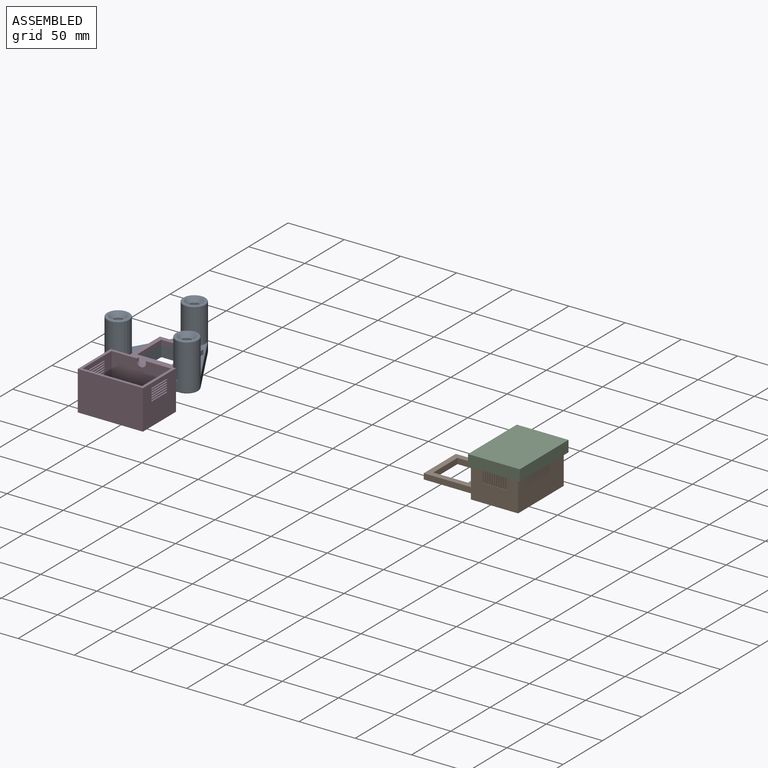
[diagram: assembled view]
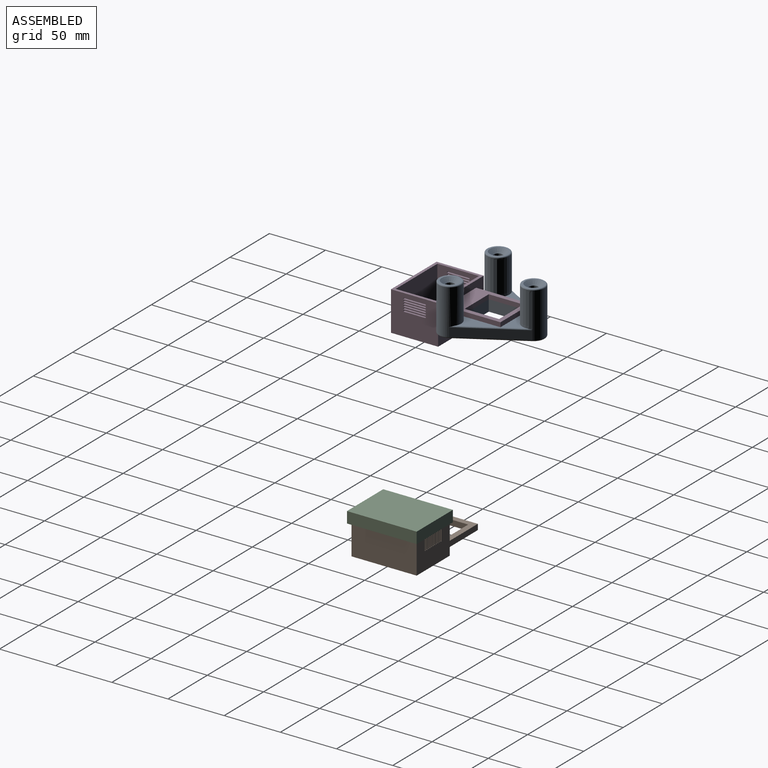
[diagram: assembled view, second angle]
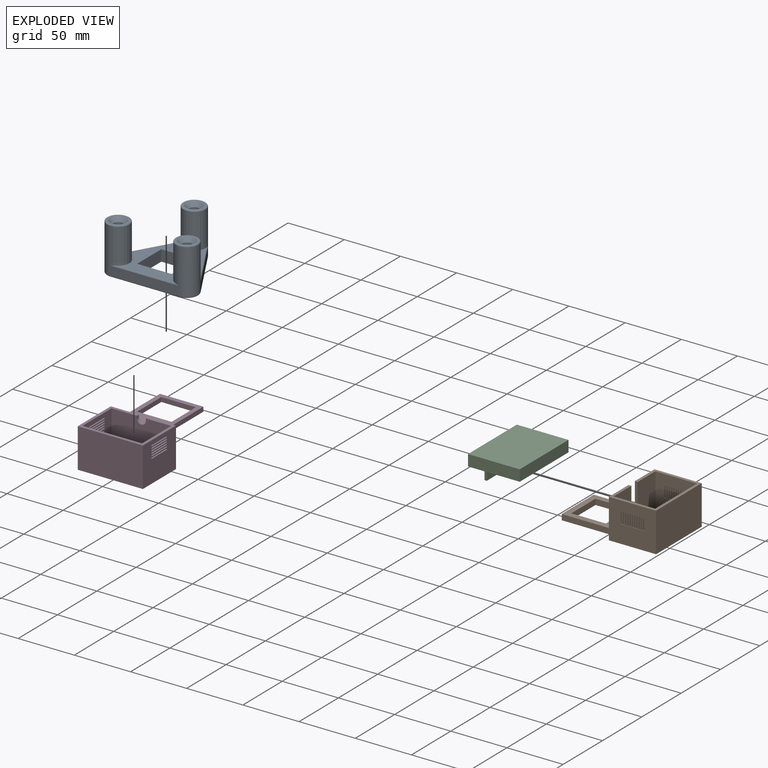
[diagram: exploded view]
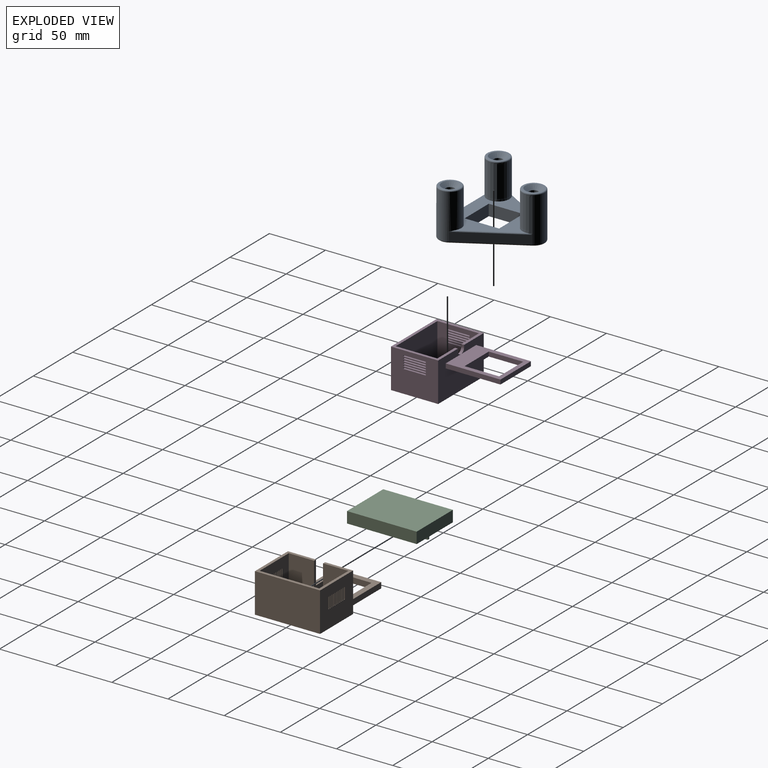
[diagram: exploded view, second angle]
ASSEMBLY  parts=4 mates=2
PART A: 40 faces, bbox 82.8x74.6x42 mm
  f0: plane 72.44x62.74mm, normal (0,0,1), area 1721mm2, adj f2,f8,f11,f33,f34,f35,f36,f37
  f1: plane 79.2x71mm, normal (0,0,-1), area 2586.1mm2, adj f27,f28,f29,f30,f31,f32,f36,f37
  f2: cylinder r=10mm len=40mm, axis (0,0,-1), area 2140.8mm2, adj f0,f3,f7,f17,f32,f34,f35
  f3: plane 53x30.6mm, normal (0.87,0.5,0), area 489.6mm2, adj f2,f4,f31,f34
  f4: cylinder r=10mm len=40mm, axis (0,0,-1), area 837.8mm2, adj f3,f5,f8,f16,f29
  f5: plane 53x30.6mm, normal (-0.87,0.5,0), area 489.6mm2, adj f4,f6,f27,f33
  f6: cylinder r=10mm len=40mm, axis (0,0,-1), area 837.8mm2, adj f5,f7,f11,f14,f28
  f7: plane 61.2x8mm, normal (0,-1,0), area 489.6mm2, adj f2,f6,f30,f35
  f8: extruded ~32x20mm, area 1303.4mm2, adj f0,f4,f15,f33,f34
  f9: plane 18.01x18mm, normal (0,0,1), area 77.7mm2, adj f15,f16,f25
  f10: plane 18x18mm, normal (0,0,1), area 77.8mm2, adj f17,f24
  f11: extruded ~32x20mm, area 1303.4mm2, adj f0,f6,f13,f33,f35
  f12: plane 18.01x18.01mm, normal (0,0,1), area 77.7mm2, adj f13,f14,f26
  f13: bspline ~20.01x18.8mm, area 63.4mm2, adj f11,f12,f14
  f14: torus R=9mm, axis (0,0,1), area 31.7mm2, adj f6,f12,f13
  f15: bspline ~20.02x15.24mm, area 63.4mm2, adj f8,f9,f16
  f16: torus R=9mm, axis (0,0,1), area 31.7mm2, adj f4,f9,f15
  f17: torus R=9mm, axis (0,0,1), area 95.1mm2, adj f2,f10
  f18: cone r=0mm half-angle=59deg, axis (0,0,1), area 58.6mm2, adj f19
  f19: cylinder r=4mm len=8mm, axis (0,0,1), area 130.7mm2, adj f18,f26
  f20: cone r=0mm half-angle=59deg, axis (0,0,1), area 58.6mm2, adj f21
  f21: cylinder r=4mm len=8mm, axis (0,0,1), area 130.7mm2, adj f20,f24
  f22: cone r=0mm half-angle=59deg, axis (0,0,1), area 58.6mm2, adj f23
  f23: cylinder r=4mm len=8mm, axis (0,0,1), area 130.7mm2, adj f22,f25
  f24: cone r=4mm half-angle=45deg, axis (0,0,1), area 178.8mm2, adj f10,f21
  f25: cone r=4mm half-angle=45deg, axis (0,0,1), area 178.8mm2, adj f9,f23
  f26: cone r=4mm half-angle=45deg, axis (0,0,1), area 178.8mm2, adj f12,f19
  f27: cylinder r=1mm len=53.5mm, axis (-0.5,-0.87,0), area 96.1mm2, adj f1,f5,f28,f29
  f28: torus R=9mm, axis (0,0,1), area 31.7mm2, adj f1,f6,f27,f30
  f29: torus R=9mm, axis (0,0,1), area 31.7mm2, adj f1,f4,f27,f31
  f30: cylinder r=1mm len=61.2mm, axis (1,0,0), area 96.1mm2, adj f1,f7,f28,f32
  f31: cylinder r=1mm len=53.5mm, axis (-0.5,0.87,0), area 96.1mm2, adj f1,f3,f29,f32
  f32: torus R=9mm, axis (0,0,1), area 31.7mm2, adj f1,f2,f30,f31
  f33: cylinder r=1mm len=53.5mm, axis (0.5,0.87,0), area 89.3mm2, adj f0,f5,f8,f11
  f34: cylinder r=1mm len=53.5mm, axis (0.5,-0.87,0), area 89.3mm2, adj f0,f2,f3,f8
  f35: cylinder r=1mm len=61.2mm, axis (-1,0,0), area 89.3mm2, adj f0,f2,f7,f11
  f36: plane 30.7x10mm, normal (0,-1,0), area 307mm2, adj f0,f1,f37,f39
  f37: plane 30.7x10mm, normal (1,0,0), area 307mm2, adj f0,f1,f36,f38
  f38: plane 30.7x10mm, normal (0,1,0), area 307mm2, adj f0,f1,f37,f39
  f39: plane 30.7x10mm, normal (-1,0,0), area 307mm2, adj f0,f1,f36,f38
PART B: 110 faces, bbox 90x58x35 mm
  f0: plane 58x42mm, normal (0,0,1), area 455mm2, adj f1,f2,f3,f4,f5,f6,f9,f10
  f1: plane 35x25mm, normal (-1,0,0), area 793mm2, adj f0,f4,f7,f8,f14,f109
  f2: plane 53x32.5mm, normal (1,0,0), area 1482.5mm2, adj f0,f5,f6,f8,f12,f108,f109
  f3: plane 42x35mm, normal (0,1,0), area 1360mm2, adj f0,f7,f9,f10,f64,f65,f66,f67
  f4: plane 42x35mm, normal (0,-1,0), area 1360mm2, adj f0,f1,f7,f10,f20,f21,f22,f23
  f5: plane 37x32.5mm, normal (0,-1,0), area 1092.5mm2, adj f0,f2,f11,f12,f64,f65,f66,f67
  f6: plane 37x32.5mm, normal (0,1,0), area 1092.5mm2, adj f0,f2,f11,f12,f20,f21,f22,f23
  f7: plane 90x58mm, normal (0,0,-1), area 3451.9mm2, adj f1,f3,f4,f9,f10,f13,f14,f15
  f8: plane 50.5x40.8mm, normal (0,0,1), area 1035.9mm2, adj f1,f2,f9,f13,f14,f15,f16,f17
  f9: plane 35x25mm, normal (-1,0,0), area 793mm2, adj f0,f3,f7,f8,f13,f108
  f10: plane 58x35mm, normal (1,0,0), area 2030mm2, adj f0,f3,f4,f7
  f11: plane 53x32.5mm, normal (-1,0,0), area 1722.5mm2, adj f0,f5,f6,f12
  f12: plane 53x37mm, normal (0,0,1), area 1961mm2, adj f2,f5,f6,f11
  f13: plane 48x5mm, normal (0,1,0), area 240mm2, adj f7,f8,f9,f15
  f14: plane 48x5mm, normal (0,-1,0), area 240mm2, adj f1,f7,f8,f15
  f15: plane 40.8x5mm, normal (-1,0,0), area 204mm2, adj f7,f8,f13,f14
  f16: plane 30.7x5mm, normal (0,-1,0), area 153.5mm2, adj f7,f8,f17,f19
  f17: plane 30.7x5mm, normal (1,0,0), area 153.5mm2, adj f7,f8,f16,f18
  f18: plane 30.7x5mm, normal (0,1,0), area 153.5mm2, adj f7,f8,f17,f19
  f19: plane 30.7x5mm, normal (-1,0,0), area 153.5mm2, adj f7,f8,f16,f18
  f20: plane 2.5x1mm, normal (0,0,-1), area 2.5mm2, adj f4,f6,f21,f23
  f21: plane 10x2.5mm, normal (-1,0,0), area 25mm2, adj f4,f6,f20,f22
  f22: plane 2.5x1mm, normal (0,0,1), area 2.5mm2, adj f4,f6,f21,f23
  f23: plane 10x2.5mm, normal (1,0,0), area 25mm2, adj f4,f6,f20,f22
  f24: plane 2.5x1mm, normal (0,0,-1), area 2.5mm2, adj f4,f6,f25,f27
  f25: plane 10x2.5mm, normal (-1,0,0), area 25mm2, adj f4,f6,f24,f26
  f26: plane 2.5x1mm, normal (0,0,1), area 2.5mm2, adj f4,f6,f25,f27
  f27: plane 10x2.5mm, normal (1,0,0), area 25mm2, adj f4,f6,f24,f26
  f28: plane 2.5x1mm, normal (0,0,-1), area 2.5mm2, adj f4,f6,f29,f31
  f29: plane 10x2.5mm, normal (-1,0,0), area 25mm2, adj f4,f6,f28,f30
  f30: plane 2.5x1mm, normal (0,0,1), area 2.5mm2, adj f4,f6,f29,f31
  f31: plane 10x2.5mm, normal (1,0,0), area 25mm2, adj f4,f6,f28,f30
  f32: plane 2.5x1mm, normal (0,0,-1), area 2.5mm2, adj f4,f6,f33,f35
  f33: plane 10x2.5mm, normal (-1,0,0), area 25mm2, adj f4,f6,f32,f34
  f34: plane 2.5x1mm, normal (0,0,1), area 2.5mm2, adj f4,f6,f33,f35
  f35: plane 10x2.5mm, normal (1,0,0), area 25mm2, adj f4,f6,f32,f34
  f36: plane 2.5x1mm, normal (0,0,-1), area 2.5mm2, adj f4,f6,f37,f39
  f37: plane 10x2.5mm, normal (-1,0,0), area 25mm2, adj f4,f6,f36,f38
  f38: plane 2.5x1mm, normal (0,0,1), area 2.5mm2, adj f4,f6,f37,f39
  f39: plane 10x2.5mm, normal (1,0,0), area 25mm2, adj f4,f6,f36,f38
  f40: plane 2.5x1mm, normal (0,0,-1), area 2.5mm2, adj f4,f6,f41,f43
  f41: plane 10x2.5mm, normal (-1,0,0), area 25mm2, adj f4,f6,f40,f42
  f42: plane 2.5x1mm, normal (0,0,1), area 2.5mm2, adj f4,f6,f41,f43
  f43: plane 10x2.5mm, normal (1,0,0), area 25mm2, adj f4,f6,f40,f42
  f44: plane 2.5x1mm, normal (0,0,-1), area 2.5mm2, adj f4,f6,f45,f47
  f45: plane 10x2.5mm, normal (-1,0,0), area 25mm2, adj f4,f6,f44,f46
  f46: plane 2.5x1mm, normal (0,0,1), area 2.5mm2, adj f4,f6,f45,f47
  f47: plane 10x2.5mm, normal (1,0,0), area 25mm2, adj f4,f6,f44,f46
  f48: plane 2.5x1mm, normal (0,0,-1), area 2.5mm2, adj f4,f6,f49,f51
  f49: plane 10x2.5mm, normal (-1,0,0), area 25mm2, adj f4,f6,f48,f50
  f50: plane 2.5x1mm, normal (0,0,1), area 2.5mm2, adj f4,f6,f49,f51
  f51: plane 10x2.5mm, normal (1,0,0), area 25mm2, adj f4,f6,f48,f50
  f52: plane 2.5x1mm, normal (0,0,-1), area 2.5mm2, adj f4,f6,f53,f55
  f53: plane 10x2.5mm, normal (-1,0,0), area 25mm2, adj f4,f6,f52,f54
  f54: plane 2.5x1mm, normal (0,0,1), area 2.5mm2, adj f4,f6,f53,f55
  f55: plane 10x2.5mm, normal (1,0,0), area 25mm2, adj f4,f6,f52,f54
  f56: plane 2.5x1mm, normal (0,0,-1), area 2.5mm2, adj f4,f6,f57,f59
  f57: plane 10x2.5mm, normal (-1,0,0), area 25mm2, adj f4,f6,f56,f58
  f58: plane 2.5x1mm, normal (0,0,1), area 2.5mm2, adj f4,f6,f57,f59
  f59: plane 10x2.5mm, normal (1,0,0), area 25mm2, adj f4,f6,f56,f58
  f60: plane 10x2.5mm, normal (-1,0,0), area 25mm2, adj f4,f6,f61,f63
  f61: plane 2.5x1mm, normal (0,0,1), area 2.5mm2, adj f4,f6,f60,f62
  f62: plane 10x2.5mm, normal (1,0,0), area 25mm2, adj f4,f6,f61,f63
  f63: plane 2.5x1mm, normal (0,0,-1), area 2.5mm2, adj f4,f6,f60,f62
  f64: plane 10x2.5mm, normal (1,0,0), area 25mm2, adj f3,f5,f65,f67
  f65: plane 2.5x1mm, normal (0,0,1), area 2.5mm2, adj f3,f5,f64,f66
  f66: plane 10x2.5mm, normal (-1,0,0), area 25mm2, adj f3,f5,f65,f67
  f67: plane 2.5x1mm, normal (0,0,-1), area 2.5mm2, adj f3,f5,f64,f66
  f68: plane 10x2.5mm, normal (1,0,0), area 25mm2, adj f3,f5,f69,f71
  f69: plane 2.5x1mm, normal (0,0,1), area 2.5mm2, adj f3,f5,f68,f70
  f70: plane 10x2.5mm, normal (-1,0,0), area 25mm2, adj f3,f5,f69,f71
  f71: plane 2.5x1mm, normal (0,0,-1), area 2.5mm2, adj f3,f5,f68,f70
  f72: plane 10x2.5mm, normal (1,0,0), area 25mm2, adj f3,f5,f73,f75
  f73: plane 2.5x1mm, normal (0,0,1), area 2.5mm2, adj f3,f5,f72,f74
  f74: plane 10x2.5mm, normal (-1,0,0), area 25mm2, adj f3,f5,f73,f75
  f75: plane 2.5x1mm, normal (0,0,-1), area 2.5mm2, adj f3,f5,f72,f74
  f76: plane 10x2.5mm, normal (1,0,0), area 25mm2, adj f3,f5,f77,f79
  f77: plane 2.5x1mm, normal (0,0,1), area 2.5mm2, adj f3,f5,f76,f78
  f78: plane 10x2.5mm, normal (-1,0,0), area 25mm2, adj f3,f5,f77,f79
  f79: plane 2.5x1mm, normal (0,0,-1), area 2.5mm2, adj f3,f5,f76,f78
  f80: plane 10x2.5mm, normal (1,0,0), area 25mm2, adj f3,f5,f81,f83
  f81: plane 2.5x1mm, normal (0,0,1), area 2.5mm2, adj f3,f5,f80,f82
  f82: plane 10x2.5mm, normal (-1,0,0), area 25mm2, adj f3,f5,f81,f83
  f83: plane 2.5x1mm, normal (0,0,-1), area 2.5mm2, adj f3,f5,f80,f82
  f84: plane 10x2.5mm, normal (1,0,0), area 25mm2, adj f3,f5,f85,f87
  f85: plane 2.5x1mm, normal (0,0,1), area 2.5mm2, adj f3,f5,f84,f86
  f86: plane 10x2.5mm, normal (-1,0,0), area 25mm2, adj f3,f5,f85,f87
  f87: plane 2.5x1mm, normal (0,0,-1), area 2.5mm2, adj f3,f5,f84,f86
  f88: plane 10x2.5mm, normal (1,0,0), area 25mm2, adj f3,f5,f89,f91
  f89: plane 2.5x1mm, normal (0,0,1), area 2.5mm2, adj f3,f5,f88,f90
  f90: plane 10x2.5mm, normal (-1,0,0), area 25mm2, adj f3,f5,f89,f91
  f91: plane 2.5x1mm, normal (0,0,-1), area 2.5mm2, adj f3,f5,f88,f90
  f92: plane 10x2.5mm, normal (1,0,0), area 25mm2, adj f3,f5,f93,f95
  f93: plane 2.5x1mm, normal (0,0,1), area 2.5mm2, adj f3,f5,f92,f94
  f94: plane 10x2.5mm, normal (-1,0,0), area 25mm2, adj f3,f5,f93,f95
  f95: plane 2.5x1mm, normal (0,0,-1), area 2.5mm2, adj f3,f5,f92,f94
  f96: plane 10x2.5mm, normal (1,0,0), area 25mm2, adj f3,f5,f97,f99
  f97: plane 2.5x1mm, normal (0,0,1), area 2.5mm2, adj f3,f5,f96,f98
  f98: plane 10x2.5mm, normal (-1,0,0), area 25mm2, adj f3,f5,f97,f99
  f99: plane 2.5x1mm, normal (0,0,-1), area 2.5mm2, adj f3,f5,f96,f98
  f100: plane 10x2.5mm, normal (1,0,0), area 25mm2, adj f3,f5,f101,f103
  f101: plane 2.5x1mm, normal (0,0,1), area 2.5mm2, adj f3,f5,f100,f102
  f102: plane 10x2.5mm, normal (-1,0,0), area 25mm2, adj f3,f5,f101,f103
  f103: plane 2.5x1mm, normal (0,0,-1), area 2.5mm2, adj f3,f5,f100,f102
  f104: plane 2.5x1mm, normal (0,0,-1), area 2.5mm2, adj f3,f5,f105,f107
  f105: plane 10x2.5mm, normal (1,0,0), area 25mm2, adj f3,f5,f104,f106
  f106: plane 2.5x1mm, normal (0,0,1), area 2.5mm2, adj f3,f5,f105,f107
  f107: plane 10x2.5mm, normal (-1,0,0), area 25mm2, adj f3,f5,f104,f106
  f108: plane 30x2.5mm, normal (0,-1,0), area 75mm2, adj f0,f2,f8,f9
  f109: plane 30x2.5mm, normal (0,1,0), area 75mm2, adj f0,f1,f2,f8
PART C: 16 faces, bbox 46x62x29 mm
  f0: plane 46x10mm, normal (0,1,0), area 460mm2, adj f1,f7,f8,f15
  f1: plane 62x29mm, normal (-1,0,0), area 1000mm2, adj f0,f2,f8,f10,f11,f13,f15
  f2: plane 46x10mm, normal (0,-1,0), area 460mm2, adj f1,f7,f8,f15
  f3: plane 42.4x8mm, normal (0,-1,0), area 339.2mm2, adj f4,f6,f8,f14
  f4: plane 58.4x8mm, normal (-1,0,0), area 467.2mm2, adj f3,f5,f8,f14
  f5: plane 42.4x8mm, normal (0,1,0), area 339.2mm2, adj f4,f6,f8,f14
  f6: plane 58.4x8mm, normal (1,0,0), area 467.2mm2, adj f3,f5,f8,f9,f14
  f7: plane 62x10mm, normal (1,0,0), area 620mm2, adj f0,f2,f8,f15
  f8: plane 62x46mm, normal (0,0,-1), area 339.8mm2, adj f0,f1,f2,f3,f4,f5,f6,f7
  f9: plane 20x0.2mm, normal (0,0,1), area 4mm2, adj f6,f10,f11,f12
  f10: plane 19x2mm, normal (0,-1,0), area 38mm2, adj f1,f8,f9,f12,f13
  f11: plane 19x2mm, normal (0,1,0), area 38mm2, adj f1,f8,f9,f12,f13
  f12: plane 20x19mm, normal (1,0,0), area 380mm2, adj f9,f10,f11,f13
  f13: plane 20x2mm, normal (0,0,-1), area 40mm2, adj f1,f10,f11,f12
  f14: plane 58.4x42.4mm, normal (0,0,-1), area 2476.2mm2, adj f3,f4,f5,f6
  f15: plane 62x46mm, normal (0,0,1), area 2852mm2, adj f0,f1,f2,f7
PART D: 71 faces, bbox 90.7x58x35 mm
  f0: plane 58x42mm, normal (0,0,1), area 455mm2, adj f1,f2,f3,f4,f5,f6,f7,f18
  f1: plane 58x35mm, normal (-1,0,0), area 1834.1mm2, adj f0,f3,f4,f8,f10,f15,f16,f17
  f2: plane 53x32.5mm, normal (1,0,0), area 1681.4mm2, adj f0,f5,f6,f19,f68,f69,f70
  f3: plane 42x35mm, normal (0,1,0), area 1350mm2, adj f0,f1,f7,f8,f44,f45,f46,f47
  f4: plane 42x35mm, normal (0,-1,0), area 1350mm2, adj f0,f1,f7,f8,f20,f21,f22,f23
  f5: plane 37x32.5mm, normal (0,-1,0), area 1082.5mm2, adj f0,f2,f18,f19,f44,f45,f46,f47
  f6: plane 37x32.5mm, normal (0,1,0), area 1082.5mm2, adj f0,f2,f18,f19,f20,f21,f22,f23
  f7: plane 58x35mm, normal (1,0,0), area 2030mm2, adj f0,f3,f4,f8
  f8: plane 58x42mm, normal (0,0,-1), area 2436mm2, adj f1,f3,f4,f7
  f9: plane 38.7x4mm, normal (-1,0,0), area 154.8mm2, adj f10,f15,f16,f17
  f10: plane 48.7x4mm, normal (0,-1,0), area 194.8mm2, adj f1,f9,f16,f17
  f11: plane 30.7x4mm, normal (1,0,0), area 122.8mm2, adj f12,f14,f16,f17
  f12: plane 30.7x4mm, normal (0,-1,0), area 122.8mm2, adj f11,f13,f16,f17
  f13: plane 30.7x4mm, normal (-1,0,0), area 122.8mm2, adj f12,f14,f16,f17
  f14: plane 30.7x4mm, normal (0,1,0), area 122.8mm2, adj f11,f13,f16,f17
  f15: plane 48.7x4mm, normal (0,1,0), area 194.8mm2, adj f1,f9,f16,f17
  f16: plane 48.7x38.7mm, normal (0,0,1), area 942.2mm2, adj f1,f9,f10,f11,f12,f13,f14,f15
  f17: plane 48.7x38.7mm, normal (0,0,-1), area 942.2mm2, adj f1,f9,f10,f11,f12,f13,f14,f15
  f18: plane 53x32.5mm, normal (-1,0,0), area 1722.5mm2, adj f0,f5,f6,f19
  f19: plane 53x37mm, normal (0,0,1), area 1961mm2, adj f2,f5,f6,f18
  f20: plane 2.5x1mm, normal (-1,0,0), area 2.5mm2, adj f4,f6,f21,f23
  f21: plane 20x2.5mm, normal (0,0,-1), area 50mm2, adj f4,f6,f20,f22
  f22: plane 2.5x1mm, normal (1,0,0), area 2.5mm2, adj f4,f6,f21,f23
  f23: plane 20x2.5mm, normal (0,0,1), area 50mm2, adj f4,f6,f20,f22
  f24: plane 20x2.5mm, normal (0,0,1), area 50mm2, adj f4,f6,f25,f27
  f25: plane 2.5x1mm, normal (-1,0,0), area 2.5mm2, adj f4,f6,f24,f26
  f26: plane 20x2.5mm, normal (0,0,-1), area 50mm2, adj f4,f6,f25,f27
  f27: plane 2.5x1mm, normal (1,0,0), area 2.5mm2, adj f4,f6,f24,f26
  f28: plane 20x2.5mm, normal (0,0,1), area 50mm2, adj f4,f6,f29,f31
  f29: plane 2.5x1mm, normal (-1,0,0), area 2.5mm2, adj f4,f6,f28,f30
  f30: plane 20x2.5mm, normal (0,0,-1), area 50mm2, adj f4,f6,f29,f31
  f31: plane 2.5x1mm, normal (1,0,0), area 2.5mm2, adj f4,f6,f28,f30
  f32: plane 2.5x1mm, normal (-1,0,0), area 2.5mm2, adj f4,f6,f33,f35
  f33: plane 20x2.5mm, normal (0,0,-1), area 50mm2, adj f4,f6,f32,f34
  f34: plane 2.5x1mm, normal (1,0,0), area 2.5mm2, adj f4,f6,f33,f35
  f35: plane 20x2.5mm, normal (0,0,1), area 50mm2, adj f4,f6,f32,f34
  f36: plane 2.5x1mm, normal (-1,0,0), area 2.5mm2, adj f4,f6,f37,f39
  f37: plane 20x2.5mm, normal (0,0,-1), area 50mm2, adj f4,f6,f36,f38
  f38: plane 2.5x1mm, normal (1,0,0), area 2.5mm2, adj f4,f6,f37,f39
  f39: plane 20x2.5mm, normal (0,0,1), area 50mm2, adj f4,f6,f36,f38
  f40: plane 20x2.5mm, normal (0,0,1), area 50mm2, adj f4,f6,f41,f43
  f41: plane 2.5x1mm, normal (-1,0,0), area 2.5mm2, adj f4,f6,f40,f42
  f42: plane 20x2.5mm, normal (0,0,-1), area 50mm2, adj f4,f6,f41,f43
  f43: plane 2.5x1mm, normal (1,0,0), area 2.5mm2, adj f4,f6,f40,f42
  f44: plane 20x2.5mm, normal (0,0,1), area 50mm2, adj f3,f5,f45,f47
  f45: plane 2.5x1mm, normal (1,0,0), area 2.5mm2, adj f3,f5,f44,f46
  f46: plane 20x2.5mm, normal (0,0,-1), area 50mm2, adj f3,f5,f45,f47
  f47: plane 2.5x1mm, normal (-1,0,0), area 2.5mm2, adj f3,f5,f44,f46
  f48: plane 2.5x1mm, normal (1,0,0), area 2.5mm2, adj f3,f5,f49,f51
  f49: plane 20x2.5mm, normal (0,0,-1), area 50mm2, adj f3,f5,f48,f50
  f50: plane 2.5x1mm, normal (-1,0,0), area 2.5mm2, adj f3,f5,f49,f51
  f51: plane 20x2.5mm, normal (0,0,1), area 50mm2, adj f3,f5,f48,f50
  f52: plane 2.5x1mm, normal (1,0,0), area 2.5mm2, adj f3,f5,f53,f55
  f53: plane 20x2.5mm, normal (0,0,-1), area 50mm2, adj f3,f5,f52,f54
  f54: plane 2.5x1mm, normal (-1,0,0), area 2.5mm2, adj f3,f5,f53,f55
  f55: plane 20x2.5mm, normal (0,0,1), area 50mm2, adj f3,f5,f52,f54
  f56: plane 20x2.5mm, normal (0,0,1), area 50mm2, adj f3,f5,f57,f59
  f57: plane 2.5x1mm, normal (1,0,0), area 2.5mm2, adj f3,f5,f56,f58
  f58: plane 20x2.5mm, normal (0,0,-1), area 50mm2, adj f3,f5,f57,f59
  f59: plane 2.5x1mm, normal (-1,0,0), area 2.5mm2, adj f3,f5,f56,f58
  f60: plane 20x2.5mm, normal (0,0,1), area 50mm2, adj f3,f5,f61,f63
  f61: plane 2.5x1mm, normal (1,0,0), area 2.5mm2, adj f3,f5,f60,f62
  f62: plane 20x2.5mm, normal (0,0,-1), area 50mm2, adj f3,f5,f61,f63
  f63: plane 2.5x1mm, normal (-1,0,0), area 2.5mm2, adj f3,f5,f60,f62
  f64: plane 2.5x1mm, normal (1,0,0), area 2.5mm2, adj f3,f5,f65,f67
  f65: plane 20x2.5mm, normal (0,0,-1), area 50mm2, adj f3,f5,f64,f66
  f66: plane 2.5x1mm, normal (-1,0,0), area 2.5mm2, adj f3,f5,f65,f67
  f67: plane 20x2.5mm, normal (0,0,1), area 50mm2, adj f3,f5,f64,f66
  f68: plane 2.5x2mm, normal (0,-1,0), area 5mm2, adj f0,f1,f2,f69
  f69: cylinder r=4mm len=8mm, axis (-1,0,0), area 31.4mm2, adj f1,f2,f68,f70
  f70: plane 2.5x2mm, normal (0,1,0), area 5mm2, adj f0,f1,f2,f69
PLACE A t=(12.37,13.65,1.58)mm
PLACE B t=(260.91,104.62,-65.74)mm
PLACE C t=(261.78,104.62,-38.74)mm
PLACE D rot(axis=(0,0,-1),90deg) t=(12.37,13.65,11.58)mm
MATE fastened C.f14 <-> B.f0  axis (0,0,-1) through (261.78,104.62,-30.74)mm
MATE fastened D.f17 <-> A.f0  axis (0,0,-1) through (12.37,13.65,11.58)mm
